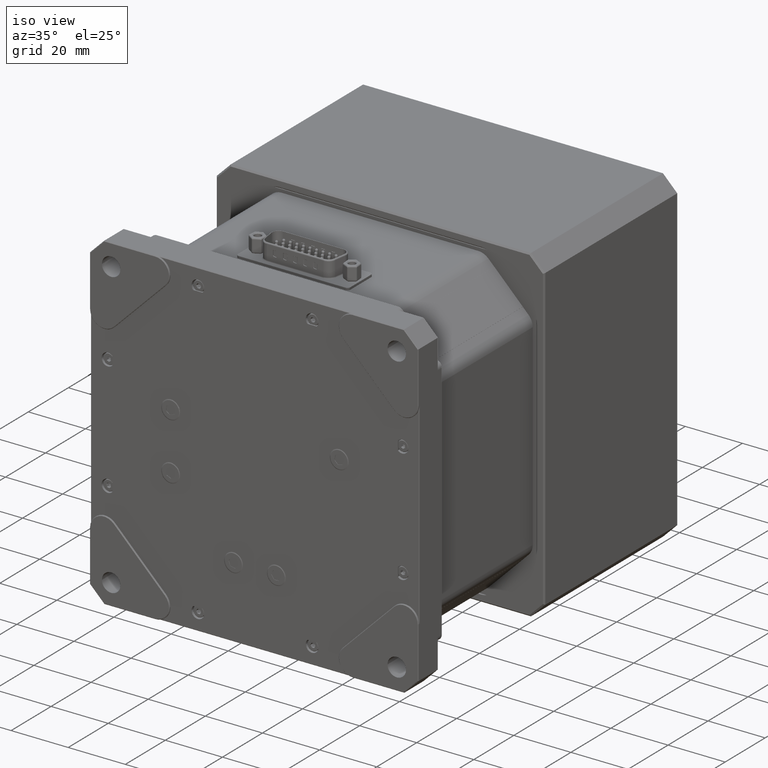
[diagram: clean part render]
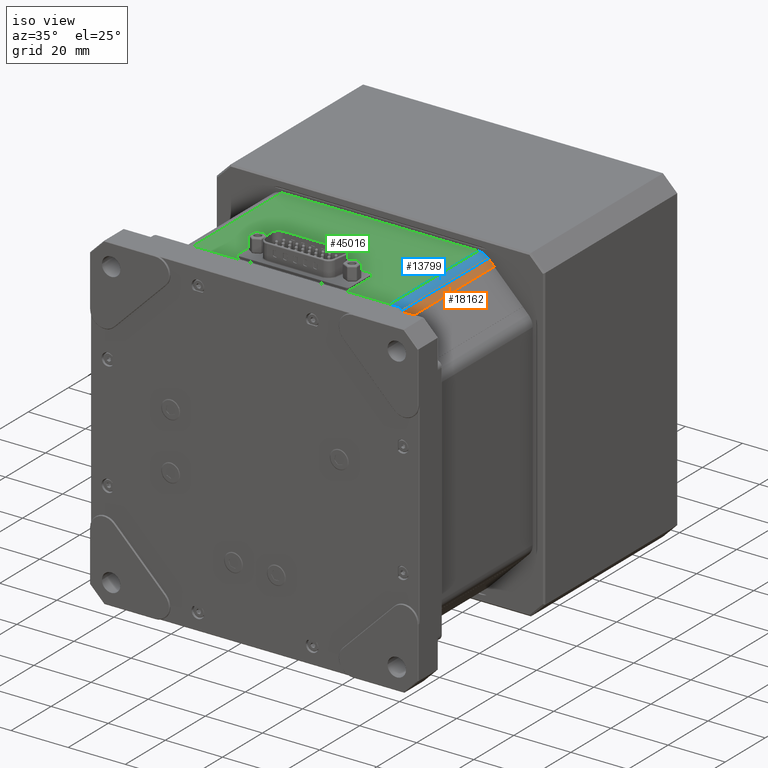
[diagram: same view with three faces highlighted in distinct colors, each labeled with its STEP entity id]
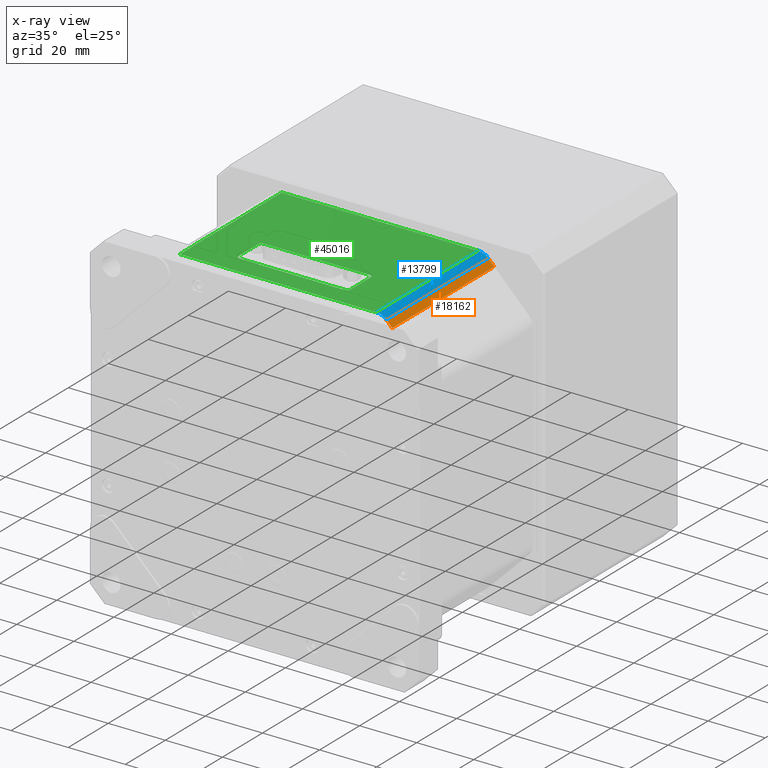
[diagram: x-ray of the same camera — body ghosted, the three highlighted faces saturated]
A machine part, iso view with three faces highlighted in distinct colors.
The next image is the same camera in x-ray (body ghosted, the three faces saturated) — at least one of them is partly hidden behind the body in this view.
Their STEP definitions:

[orange] entity #18162 — the highlighted planar face has unit normal (-0.7071, -0, -0.7071).
#425 = VERTEX_POINT ( 'NONE', #10258 ) ;
#1461 = CARTESIAN_POINT ( 'NONE',  ( 6.992961454051629389, 12.00000000000000000, -1.464466094067286006 ) ) ;
#1908 = FACE_OUTER_BOUND ( 'NONE', #26545, .T. ) ;
#4961 = VECTOR ( 'NONE', #36307, 1000.000000000000000 ) ;
#4979 = CARTESIAN_POINT ( 'NONE',  ( 6.992961454051619619, 12.00000000000000000, -1.464466094067284008 ) ) ;
#5494 = DIRECTION ( 'NONE',  ( -0.7071067811865470176, 0.000000000000000000, 0.7071067811865480168 ) ) ;
#5750 = CARTESIAN_POINT ( 'NONE',  ( 22.52849535998429786, 117.0000000000000000, -17.00000000000000000 ) ) ;
#6995 = CARTESIAN_POINT ( 'NONE',  ( 22.52849535998435115, 63.00000000000000000, -17.00000000000000000 ) ) ;
#9317 = DIRECTION ( 'NONE',  ( -2.977180940929380324E-16, 1.000000000000000000, -2.977180940929374901E-16 ) ) ;
#10236 = ORIENTED_EDGE ( 'NONE', *, *, #11491, .F. ) ;
#10258 = CARTESIAN_POINT ( 'NONE',  ( 9.028495359984960444, 63.00000000000000000, -3.500000000000640377 ) ) ;
#11491 = EDGE_CURVE ( 'NONE', #425, #32413, #43982, .T. ) ;
#12468 = VECTOR ( 'NONE', #50192, 1000.000000000000000 ) ;
#13718 = VERTEX_POINT ( 'NONE', #4979 ) ;
#14988 = EDGE_CURVE ( 'NONE', #20738, #425, #45109, .T. ) ;
#16856 = ORIENTED_EDGE ( 'NONE', *, *, #44155, .F. ) ;
#16990 = CARTESIAN_POINT ( 'NONE',  ( 6.992961454051589421, 117.0000000000000000, -1.464466094067310209 ) ) ;
#17164 = AXIS2_PLACEMENT_3D ( 'NONE', #5750, #40507, #5494 ) ;
#18162 = ADVANCED_FACE ( 'NONE', ( #1908 ), #24920, .F. ) ;
#20738 = VERTEX_POINT ( 'NONE', #46660 ) ;
#21038 = ORIENTED_EDGE ( 'NONE', *, *, #28189, .T. ) ;
#21846 = ORIENTED_EDGE ( 'NONE', *, *, #14988, .F. ) ;
#24920 = PLANE ( 'NONE',  #17164 ) ;
#26545 = EDGE_LOOP ( 'NONE', ( #21846, #16856, #21038, #10236 ) ) ;
#28189 = EDGE_CURVE ( 'NONE', #13718, #32413, #36490, .T. ) ;
#32413 = VERTEX_POINT ( 'NONE', #35105 ) ;
#33065 = LINE ( 'NONE', #16990, #49572 ) ;
#33226 = CARTESIAN_POINT ( 'NONE',  ( 9.028495359984951563, 117.0000000000000000, -3.500000000000670131 ) ) ;
#35105 = CARTESIAN_POINT ( 'NONE',  ( 9.028495359984770374, 12.00000000000000000, -3.500000000000225153 ) ) ;
#36307 = DIRECTION ( 'NONE',  ( 2.977180940929380324E-16, -1.000000000000000000, 2.977180940929374901E-16 ) ) ;
#36490 = LINE ( 'NONE', #1461, #43819 ) ;
#40507 = DIRECTION ( 'NONE',  ( -0.7071067811865480168, -4.210369664301014689E-16, -0.7071067811865470176 ) ) ;
#43819 = VECTOR ( 'NONE', #49009, 1000.000000000000114 ) ;
#43982 = LINE ( 'NONE', #33226, #4961 ) ;
#44155 = EDGE_CURVE ( 'NONE', #13718, #20738, #33065, .T. ) ;
#45109 = LINE ( 'NONE', #6995, #12468 ) ;
#46660 = CARTESIAN_POINT ( 'NONE',  ( 6.992961454051609849, 63.00000000000000000, -1.464466094067294000 ) ) ;
#49009 = DIRECTION ( 'NONE',  ( 0.7071067811865460184, 6.026108087767879381E-16, -0.7071067811865489050 ) ) ;
#49572 = VECTOR ( 'NONE', #9317, 1000.000000000000000 ) ;
#50192 = DIRECTION ( 'NONE',  ( 0.7071067811865470176, 0.000000000000000000, -0.7071067811865480168 ) ) ;

[blue] entity #13799 — the highlighted cylindrical surface (edge-blend (fillet) strip) has radius 5 mm, axis along (0, -1, 0).
#288 = LINE ( 'NONE', #48073, #383 ) ;
#383 = VECTOR ( 'NONE', #40147, 1000.000000000000000 ) ;
#4979 = CARTESIAN_POINT ( 'NONE',  ( 6.992961454051619619, 12.00000000000000000, -1.464466094067284008 ) ) ;
#7476 = CIRCLE ( 'NONE', #40134, 5.000000000000000888 ) ;
#9317 = DIRECTION ( 'NONE',  ( -2.977180940929380324E-16, 1.000000000000000000, -2.977180940929374901E-16 ) ) ;
#10532 = DIRECTION ( 'NONE',  ( 0.000000000000000000, -1.000000000000000000, 2.262980913479740076E-16 ) ) ;
#11055 = EDGE_LOOP ( 'NONE', ( #31923, #24816, #47072, #20742 ) ) ;
#13410 = CARTESIAN_POINT ( 'NONE',  ( 3.457427548118845007, 117.0000000000000000, -5.000000000000000000 ) ) ;
#13665 = DIRECTION ( 'NONE',  ( 1.000000000000000000, 0.000000000000000000, 0.000000000000000000 ) ) ;
#13718 = VERTEX_POINT ( 'NONE', #4979 ) ;
#13799 = ADVANCED_FACE ( 'NONE', ( #36669 ), #48426, .T. ) ;
#14577 = VERTEX_POINT ( 'NONE', #19323 ) ;
#15348 = EDGE_CURVE ( 'NONE', #20738, #49998, #47603, .T. ) ;
#16990 = CARTESIAN_POINT ( 'NONE',  ( 6.992961454051589421, 117.0000000000000000, -1.464466094067310209 ) ) ;
#17190 = DIRECTION ( 'NONE',  ( 1.000000000000000000, 0.000000000000000000, 0.000000000000000000 ) ) ;
#19323 = CARTESIAN_POINT ( 'NONE',  ( 3.457427548118884975, 12.00000000000000000, -1.084202172485503961E-14 ) ) ;
#20738 = VERTEX_POINT ( 'NONE', #46660 ) ;
#20742 = ORIENTED_EDGE ( 'NONE', *, *, #24724, .T. ) ;
#21341 = EDGE_CURVE ( 'NONE', #14577, #13718, #7476, .T. ) ;
#22293 = CARTESIAN_POINT ( 'NONE',  ( 3.457427548118864991, 63.00000000000000000, -5.000000000000000000 ) ) ;
#24724 = EDGE_CURVE ( 'NONE', #49998, #14577, #288, .T. ) ;
#24816 = ORIENTED_EDGE ( 'NONE', *, *, #44155, .T. ) ;
#28161 = CARTESIAN_POINT ( 'NONE',  ( 3.457427548118884975, 12.00000000000000000, -5.000000000000000000 ) ) ;
#29660 = AXIS2_PLACEMENT_3D ( 'NONE', #13410, #33329, #13665 ) ;
#31923 = ORIENTED_EDGE ( 'NONE', *, *, #21341, .T. ) ;
#33065 = LINE ( 'NONE', #16990, #49572 ) ;
#33329 = DIRECTION ( 'NONE',  ( 0.000000000000000000, -1.000000000000000000, 2.262980913479740076E-16 ) ) ;
#35571 = DIRECTION ( 'NONE',  ( 1.000000000000000000, 3.469446951953613696E-16, -1.734723475976806700E-15 ) ) ;
#36669 = FACE_OUTER_BOUND ( 'NONE', #11055, .T. ) ;
#40134 = AXIS2_PLACEMENT_3D ( 'NONE', #28161, #43756, #35571 ) ;
#40147 = DIRECTION ( 'NONE',  ( 3.691380968366389923E-16, -1.000000000000000000, 2.262980913479740076E-16 ) ) ;
#43756 = DIRECTION ( 'NONE',  ( -3.469446951953615175E-16, 1.000000000000000000, -2.262980913479745007E-16 ) ) ;
#44155 = EDGE_CURVE ( 'NONE', #13718, #20738, #33065, .T. ) ;
#46660 = CARTESIAN_POINT ( 'NONE',  ( 6.992961454051609849, 63.00000000000000000, -1.464466094067294000 ) ) ;
#46759 = CARTESIAN_POINT ( 'NONE',  ( 3.457427548118864991, 63.00000000000000000, -3.487597633848974851E-14 ) ) ;
#47072 = ORIENTED_EDGE ( 'NONE', *, *, #15348, .T. ) ;
#47603 = CIRCLE ( 'NONE', #50054, 4.999999999999999112 ) ;
#48073 = CARTESIAN_POINT ( 'NONE',  ( 3.457427548118845007, 117.0000000000000000, -4.510281037539699708E-14 ) ) ;
#48426 = CYLINDRICAL_SURFACE ( 'NONE', #29660, 5.000000000000000888 ) ;
#49572 = VECTOR ( 'NONE', #9317, 1000.000000000000000 ) ;
#49998 = VERTEX_POINT ( 'NONE', #46759 ) ;
#50054 = AXIS2_PLACEMENT_3D ( 'NONE', #22293, #10532, #17190 ) ;

[green] entity #45016 — the highlighted planar face has unit normal (-0, -0, -1).
#112 = VERTEX_POINT ( 'NONE', #2888 ) ;
#199 = FACE_BOUND ( 'NONE', #5795, .T. ) ;
#288 = LINE ( 'NONE', #48073, #383 ) ;
#383 = VECTOR ( 'NONE', #40147, 1000.000000000000000 ) ;
#645 = LINE ( 'NONE', #16256, #27595 ) ;
#667 = CARTESIAN_POINT ( 'NONE',  ( -12.47224741510111912, 31.69999999999999929, -6.695220999858368637E-14 ) ) ;
#968 = EDGE_CURVE ( 'NONE', #31613, #48522, #7366, .T. ) ;
#1290 = EDGE_CURVE ( 'NONE', #112, #16551, #19314, .T. ) ;
#1412 = VECTOR ( 'NONE', #38977, 1000.000000000000000 ) ;
#1505 = CARTESIAN_POINT ( 'NONE',  ( -12.47224741510111912, 20.29999999999999716, -2.710505431213760099E-16 ) ) ;
#1704 = CIRCLE ( 'NONE', #24558, 1.000000000000000888 ) ;
#2179 = VECTOR ( 'NONE', #38552, 1000.000000000000000 ) ;
#2888 = CARTESIAN_POINT ( 'NONE',  ( -50.79076186493020373, 30.70000000000000284, -9.785418759926670435E-15 ) ) ;
#3338 = EDGE_CURVE ( 'NONE', #34999, #49340, #645, .T. ) ;
#3503 = CIRCLE ( 'NONE', #45142, 1.000000000000000888 ) ;
#3656 = DIRECTION ( 'NONE',  ( 1.000000000000000000, 0.000000000000000000, -4.126523493630514996E-16 ) ) ;
#4199 = CIRCLE ( 'NONE', #11544, 1.000000000000000888 ) ;
#5795 = EDGE_LOOP ( 'NONE', ( #38192, #26918, #22434, #6037, #25490, #6957, #21808, #20963 ) ) ;
#6037 = ORIENTED_EDGE ( 'NONE', *, *, #44229, .F. ) ;
#6336 = DIRECTION ( 'NONE',  ( 0.000000000000000000, -1.000000000000000000, 2.793484566457235191E-16 ) ) ;
#6356 = CARTESIAN_POINT ( 'NONE',  ( 5.528495359984329838, 31.69999999999999929, -2.926903013536839471E-14 ) ) ;
#6957 = ORIENTED_EDGE ( 'NONE', *, *, #1290, .F. ) ;
#7366 = LINE ( 'NONE', #22974, #2179 ) ;
#7374 = ORIENTED_EDGE ( 'NONE', *, *, #15985, .T. ) ;
#7410 = DIRECTION ( 'NONE',  ( 1.000000000000000000, 0.000000000000000000, -4.126523493630514996E-16 ) ) ;
#7887 = DIRECTION ( 'NONE',  ( 1.000000000000000000, 2.498001805406600244E-16, 0.000000000000000000 ) ) ;
#9633 = CARTESIAN_POINT ( 'NONE',  ( -65.40043682815009163, 12.00000000000000000, 2.168404344971010051E-15 ) ) ;
#9717 = DIRECTION ( 'NONE',  ( -1.494921845079933851E-16, 2.793484566457359930E-16, 1.000000000000000000 ) ) ;
#11544 = AXIS2_PLACEMENT_3D ( 'NONE', #1505, #13276, #28864 ) ;
#11555 = EDGE_CURVE ( 'NONE', #16551, #34938, #1704, .T. ) ;
#11730 = DIRECTION ( 'NONE',  ( -1.000000000000000000, 0.000000000000000000, 4.126523493630514996E-16 ) ) ;
#12482 = CARTESIAN_POINT ( 'NONE',  ( -30.97150464001570214, 12.00000000000000000, 0.000000000000000000 ) ) ;
#12532 = DIRECTION ( 'NONE',  ( -1.494921845079933851E-16, 2.793484566457319994E-16, 1.000000000000000000 ) ) ;
#13276 = DIRECTION ( 'NONE',  ( 9.542908625646799028E-17, 2.793484566457324924E-16, 1.000000000000000000 ) ) ;
#13333 = EDGE_CURVE ( 'NONE', #48522, #13478, #3503, .T. ) ;
#13478 = VERTEX_POINT ( 'NONE', #667 ) ;
#13892 = AXIS2_PLACEMENT_3D ( 'NONE', #39612, #12532, #32706 ) ;
#14563 = CARTESIAN_POINT ( 'NONE',  ( -49.79076186493019662, 31.69999999999999929, -1.016614576136369962E-14 ) ) ;
#14577 = VERTEX_POINT ( 'NONE', #19323 ) ;
#14627 = CARTESIAN_POINT ( 'NONE',  ( -50.79076186493020373, 20.29999999999999716, 4.554161346093999152E-14 ) ) ;
#15308 = CARTESIAN_POINT ( 'NONE',  ( 5.528495359984329838, 117.0000000000000000, -4.857225732735059864E-14 ) ) ;
#15938 = ORIENTED_EDGE ( 'NONE', *, *, #24724, .F. ) ;
#15985 = EDGE_CURVE ( 'NONE', #34999, #14577, #20149, .T. ) ;
#16004 = ORIENTED_EDGE ( 'NONE', *, *, #47303, .F. ) ;
#16256 = CARTESIAN_POINT ( 'NONE',  ( -65.40043682815009163, 117.0000000000000000, -1.930326682210435191E-14 ) ) ;
#16551 = VERTEX_POINT ( 'NONE', #14627 ) ;
#17621 = EDGE_CURVE ( 'NONE', #18997, #112, #35903, .T. ) ;
#18997 = VERTEX_POINT ( 'NONE', #14563 ) ;
#19314 = LINE ( 'NONE', #39226, #1412 ) ;
#19323 = CARTESIAN_POINT ( 'NONE',  ( 3.457427548118884975, 12.00000000000000000, -1.084202172485503961E-14 ) ) ;
#20149 = LINE ( 'NONE', #12482, #36185 ) ;
#20724 = EDGE_CURVE ( 'NONE', #27176, #31613, #4199, .T. ) ;
#20828 = FACE_OUTER_BOUND ( 'NONE', #26774, .T. ) ;
#20963 = ORIENTED_EDGE ( 'NONE', *, *, #21980, .F. ) ;
#21634 = CARTESIAN_POINT ( 'NONE',  ( -11.47224741510111912, 30.70000000000000284, -6.694749645936109284E-14 ) ) ;
#21808 = ORIENTED_EDGE ( 'NONE', *, *, #17621, .F. ) ;
#21980 = EDGE_CURVE ( 'NONE', #13478, #18997, #42132, .T. ) ;
#22434 = ORIENTED_EDGE ( 'NONE', *, *, #20724, .F. ) ;
#22974 = CARTESIAN_POINT ( 'NONE',  ( -11.47224741510111912, 117.0000000000000000, -4.155686088029464784E-14 ) ) ;
#24558 = AXIS2_PLACEMENT_3D ( 'NONE', #29393, #9717, #44991 ) ;
#24724 = EDGE_CURVE ( 'NONE', #49998, #14577, #288, .T. ) ;
#25490 = ORIENTED_EDGE ( 'NONE', *, *, #11555, .F. ) ;
#25765 = CARTESIAN_POINT ( 'NONE',  ( -12.47224741510111912, 30.70000000000000284, -1.117812439832553809E-13 ) ) ;
#26774 = EDGE_LOOP ( 'NONE', ( #16004, #28110, #7374, #15938 ) ) ;
#26918 = ORIENTED_EDGE ( 'NONE', *, *, #968, .F. ) ;
#27176 = VERTEX_POINT ( 'NONE', #41319 ) ;
#27595 = VECTOR ( 'NONE', #32329, 1000.000000000000000 ) ;
#28110 = ORIENTED_EDGE ( 'NONE', *, *, #3338, .F. ) ;
#28864 = DIRECTION ( 'NONE',  ( 0.000000000000000000, -1.000000000000000000, 2.793484566457322459E-16 ) ) ;
#29061 = CARTESIAN_POINT ( 'NONE',  ( -11.47224741510111912, 20.29999999999999716, -1.002776159957431959E-14 ) ) ;
#29393 = CARTESIAN_POINT ( 'NONE',  ( -49.79076186493019662, 20.29999999999999716, 9.470505976660878707E-14 ) ) ;
#31613 = VERTEX_POINT ( 'NONE', #29061 ) ;
#32311 = DIRECTION ( 'NONE',  ( -4.126523493630514996E-16, -2.262980913479745007E-16, -1.000000000000000000 ) ) ;
#32329 = DIRECTION ( 'NONE',  ( -9.338243905111609698E-32, 1.000000000000000000, -2.262980913479745007E-16 ) ) ;
#32706 = DIRECTION ( 'NONE',  ( 0.000000000000000000, 1.000000000000000000, -2.793484566457321473E-16 ) ) ;
#32891 = CARTESIAN_POINT ( 'NONE',  ( -49.79076186493019662, 19.30000000000000071, 4.567120774946509045E-14 ) ) ;
#33446 = DIRECTION ( 'NONE',  ( -1.000000000000000000, 0.000000000000000000, 4.126523493630514996E-16 ) ) ;
#34077 = LINE ( 'NONE', #42262, #39779 ) ;
#34938 = VERTEX_POINT ( 'NONE', #32891 ) ;
#34999 = VERTEX_POINT ( 'NONE', #9633 ) ;
#35903 = CIRCLE ( 'NONE', #13892, 0.9999999999999974465 ) ;
#36185 = VECTOR ( 'NONE', #7887, 1000.000000000000000 ) ;
#38192 = ORIENTED_EDGE ( 'NONE', *, *, #13333, .F. ) ;
#38552 = DIRECTION ( 'NONE',  ( -9.338243905111609698E-32, 1.000000000000000000, -2.262980913479745007E-16 ) ) ;
#38977 = DIRECTION ( 'NONE',  ( 9.338243905111609698E-32, -1.000000000000000000, 2.262980913479745007E-16 ) ) ;
#39226 = CARTESIAN_POINT ( 'NONE',  ( -50.79076186493020373, 117.0000000000000000, -2.533198351910759997E-14 ) ) ;
#39612 = CARTESIAN_POINT ( 'NONE',  ( -49.79076186493019662, 30.70000000000000284, -1.360673726469307907E-14 ) ) ;
#39779 = VECTOR ( 'NONE', #3656, 1000.000000000000000 ) ;
#40147 = DIRECTION ( 'NONE',  ( 3.691380968366389923E-16, -1.000000000000000000, 2.262980913479740076E-16 ) ) ;
#41319 = CARTESIAN_POINT ( 'NONE',  ( -12.47224741510111912, 19.30000000000000071, -9.511509326576599198E-15 ) ) ;
#42132 = LINE ( 'NONE', #6356, #42700 ) ;
#42262 = CARTESIAN_POINT ( 'NONE',  ( 5.528495359984329838, 19.30000000000000071, -2.646293380265349810E-14 ) ) ;
#42700 = VECTOR ( 'NONE', #33446, 1000.000000000000000 ) ;
#42897 = PLANE ( 'NONE',  #50439 ) ;
#43255 = VECTOR ( 'NONE', #7410, 1000.000000000000000 ) ;
#44229 = EDGE_CURVE ( 'NONE', #34938, #27176, #34077, .T. ) ;
#44991 = DIRECTION ( 'NONE',  ( 0.000000000000000000, 1.000000000000000000, -2.793484566457358451E-16 ) ) ;
#45016 = ADVANCED_FACE ( 'NONE', ( #20828, #199 ), #42897, .F. ) ;
#45142 = AXIS2_PLACEMENT_3D ( 'NONE', #25765, #49290, #6336 ) ;
#46269 = LINE ( 'NONE', #49852, #43255 ) ;
#46759 = CARTESIAN_POINT ( 'NONE',  ( 3.457427548118864991, 63.00000000000000000, -3.487597633848974851E-14 ) ) ;
#47303 = EDGE_CURVE ( 'NONE', #49340, #49998, #46269, .T. ) ;
#48073 = CARTESIAN_POINT ( 'NONE',  ( 3.457427548118845007, 117.0000000000000000, -4.510281037539699708E-14 ) ) ;
#48101 = CARTESIAN_POINT ( 'NONE',  ( -65.40043682815020532, 63.00000000000000000, -7.011031896610480353E-15 ) ) ;
#48522 = VERTEX_POINT ( 'NONE', #21634 ) ;
#49290 = DIRECTION ( 'NONE',  ( 9.542908625646799028E-17, 2.793484566457235191E-16, 1.000000000000000000 ) ) ;
#49340 = VERTEX_POINT ( 'NONE', #48101 ) ;
#49852 = CARTESIAN_POINT ( 'NONE',  ( 5.528495359984329838, 63.00000000000000000, -3.635216039455999010E-14 ) ) ;
#49998 = VERTEX_POINT ( 'NONE', #46759 ) ;
#50439 = AXIS2_PLACEMENT_3D ( 'NONE', #15308, #32311, #11730 ) ;